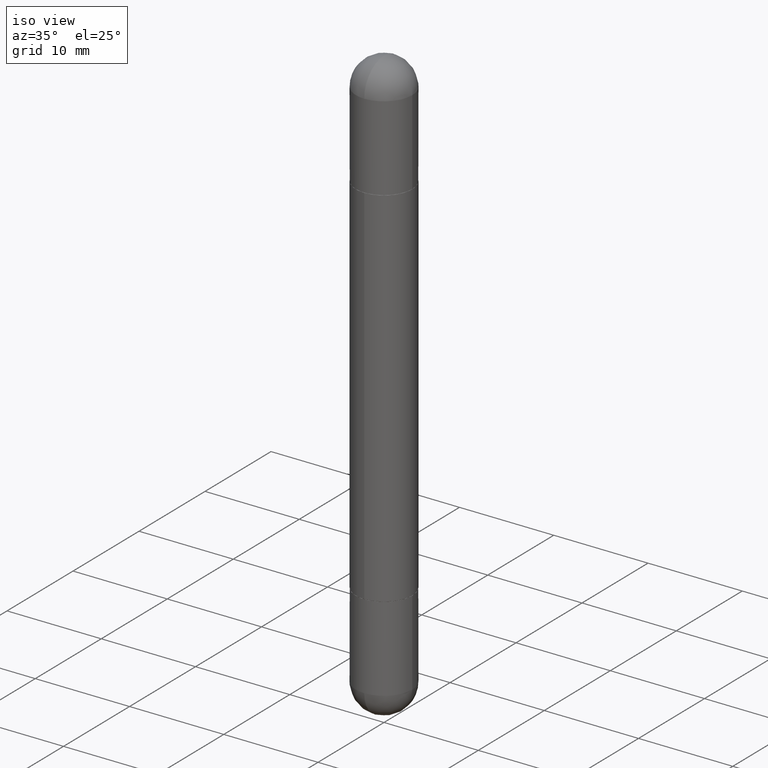
[diagram: clean part render]
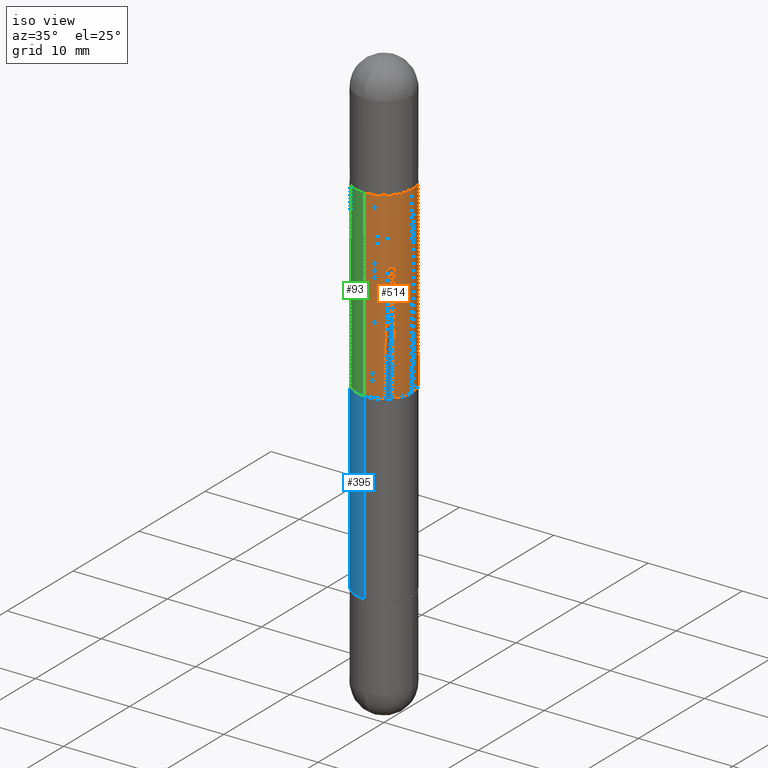
[diagram: same view with three faces highlighted in distinct colors, each labeled with its STEP entity id]
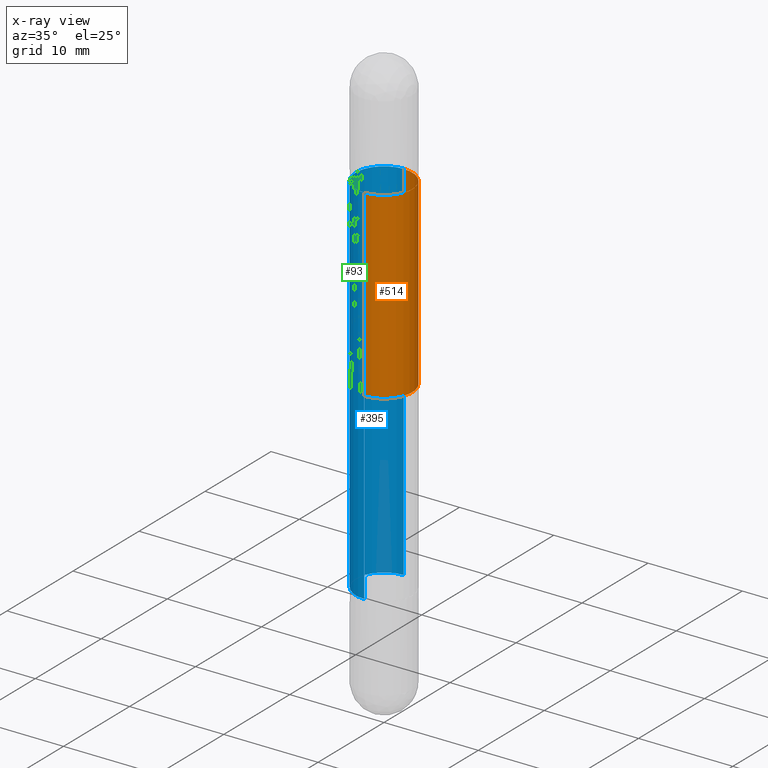
[diagram: x-ray of the same camera — body ghosted, the three highlighted faces saturated]
A machine part, iso view with three faces highlighted in distinct colors.
The next image is the same camera in x-ray (body ghosted, the three faces saturated) — at least one of them is partly hidden behind the body in this view.
Their STEP definitions:

[orange] entity #514 — the highlighted cylindrical surface (edge-blend (fillet) strip) has radius 2.9997 mm, axis along (-0, 0, -1).
#1 = CARTESIAN_POINT ( 'NONE',  ( -8.246878922347486570E-16, -0.1181000000000001077, -2.480300000000001059 ) ) ;
#27 = DIRECTION ( 'NONE',  ( -2.445001825099463957E-29, 3.492150082336742220E-15, -1.000000000000000000 ) ) ;
#57 = ORIENTED_EDGE ( 'NONE', *, *, #90, .F. ) ;
#58 = FACE_OUTER_BOUND ( 'NONE', #689, .T. ) ;
#74 = CARTESIAN_POINT ( 'NONE',  ( -8.246878922347090168E-16, -0.1181000000000044375, -1.240150000000000086 ) ) ;
#76 = VECTOR ( 'NONE', #27, 39.37007874015748143 ) ;
#90 = EDGE_CURVE ( 'NONE', #628, #216, #276, .T. ) ;
#99 = VECTOR ( 'NONE', #646, 39.37007874015748143 ) ;
#110 = DIRECTION ( 'NONE',  ( -6.982962677686265922E-15, -1.000000000000000000, -3.469747663417770297E-15 ) ) ;
#116 = DIRECTION ( 'NONE',  ( -6.982962677686265133E-15, -1.000000000000000000, -4.626330217890365392E-15 ) ) ;
#125 = ORIENTED_EDGE ( 'NONE', *, *, #420, .T. ) ;
#146 = LINE ( 'NONE', #1, #99 ) ;
#192 = CIRCLE ( 'NONE', #758, 0.1181000000000002326 ) ;
#210 = EDGE_CURVE ( 'NONE', #216, #422, #535, .T. ) ;
#216 = VERTEX_POINT ( 'NONE', #795 ) ;
#234 = DIRECTION ( 'NONE',  ( -0.000000000000000000, -0.000000000000000000, -1.000000000000000000 ) ) ;
#240 = ORIENTED_EDGE ( 'NONE', *, *, #210, .F. ) ;
#276 = LINE ( 'NONE', #393, #76 ) ;
#344 = CARTESIAN_POINT ( 'NONE',  ( 8.102248135368686180E-16, 0.1180999999999932243, -0.4734000000000000430 ) ) ;
#393 = CARTESIAN_POINT ( 'NONE',  ( 8.102248135368185253E-16, 0.1181000000000001077, -2.480299999999999727 ) ) ;
#420 = EDGE_CURVE ( 'NONE', #452, #422, #146, .T. ) ;
#422 = VERTEX_POINT ( 'NONE', #74 ) ;
#452 = VERTEX_POINT ( 'NONE', #724 ) ;
#514 = ADVANCED_FACE ( 'NONE', ( #58 ), #554, .T. ) ;
#535 = CIRCLE ( 'NONE', #635, 0.1181000000000001077 ) ;
#541 = EDGE_CURVE ( 'NONE', #452, #628, #192, .T. ) ;
#546 = AXIS2_PLACEMENT_3D ( 'NONE', #686, #690, #116 ) ;
#554 = CYLINDRICAL_SURFACE ( 'NONE', #546, 0.1181000000000001077 ) ;
#594 = ORIENTED_EDGE ( 'NONE', *, *, #541, .F. ) ;
#608 = DIRECTION ( 'NONE',  ( -1.000000000000000000, 0.000000000000000000, 0.000000000000000000 ) ) ;
#628 = VERTEX_POINT ( 'NONE', #344 ) ;
#635 = AXIS2_PLACEMENT_3D ( 'NONE', #788, #234, #608 ) ;
#646 = DIRECTION ( 'NONE',  ( -2.445001825099463957E-29, 3.492150082336742220E-15, -1.000000000000000000 ) ) ;
#683 = DIRECTION ( 'NONE',  ( 2.445001825099463957E-29, -3.492150082336741825E-15, 1.000000000000000000 ) ) ;
#686 = CARTESIAN_POINT ( 'NONE',  ( 0.000000000000000000, 0.000000000000000000, -2.480300000000000171 ) ) ;
#689 = EDGE_LOOP ( 'NONE', ( #57, #594, #125, #240 ) ) ;
#690 = DIRECTION ( 'NONE',  ( -2.445001825099463957E-29, 3.492150082336741825E-15, -1.000000000000000000 ) ) ;
#724 = CARTESIAN_POINT ( 'NONE',  ( -8.246878922347006351E-16, -0.1181000000000072547, -0.4734000000000008757 ) ) ;
#758 = AXIS2_PLACEMENT_3D ( 'NONE', #807, #683, #110 ) ;
#788 = CARTESIAN_POINT ( 'NONE',  ( 3.032169013397101030E-29, -4.330789924609910970E-15, -1.240150000000000086 ) ) ;
#795 = CARTESIAN_POINT ( 'NONE',  ( 8.102248135368673361E-16, 0.1180999999999957639, -1.240150000000000086 ) ) ;
#807 = CARTESIAN_POINT ( 'NONE',  ( 4.906874162792113662E-29, -7.008396000241606777E-15, -0.4734000000000004871 ) ) ;

[blue] entity #395 — the highlighted cylindrical surface (edge-blend (fillet) strip) has radius 2.9997 mm, axis along (-0, 0, -1).
#41 = CARTESIAN_POINT ( 'NONE',  ( -8.246878922347006351E-16, -0.1181000000000072547, -0.4734000000000008757 ) ) ;
#84 = ORIENTED_EDGE ( 'NONE', *, *, #275, .F. ) ;
#118 = EDGE_CURVE ( 'NONE', #128, #449, #364, .T. ) ;
#119 = CARTESIAN_POINT ( 'NONE',  ( 8.102248135368686180E-16, 0.1180999999999932243, -0.4734000000000000430 ) ) ;
#128 = VERTEX_POINT ( 'NONE', #41 ) ;
#129 = CARTESIAN_POINT ( 'NONE',  ( 8.102248135368185253E-16, 0.1181000000000001077, -2.480299999999999727 ) ) ;
#135 = CYLINDRICAL_SURFACE ( 'NONE', #464, 0.1181000000000001077 ) ;
#163 = EDGE_CURVE ( 'NONE', #472, #449, #361, .T. ) ;
#170 = ORIENTED_EDGE ( 'NONE', *, *, #737, .T. ) ;
#218 = VECTOR ( 'NONE', #292, 39.37007874015748143 ) ;
#238 = CARTESIAN_POINT ( 'NONE',  ( 4.906874162792113662E-29, -7.008396000241606777E-15, -2.006899999999999906 ) ) ;
#260 = VECTOR ( 'NONE', #318, 39.37007874015748143 ) ;
#275 = EDGE_CURVE ( 'NONE', #662, #128, #768, .T. ) ;
#279 = CARTESIAN_POINT ( 'NONE',  ( 8.102248135368491923E-16, 0.1180999999999932520, -2.006900000000000350 ) ) ;
#292 = DIRECTION ( 'NONE',  ( -2.445001825099463957E-29, 3.492150082336742220E-15, -1.000000000000000000 ) ) ;
#318 = DIRECTION ( 'NONE',  ( -2.445001825099463957E-29, 3.492150082336742220E-15, -1.000000000000000000 ) ) ;
#319 = ORIENTED_EDGE ( 'NONE', *, *, #118, .F. ) ;
#360 = DIRECTION ( 'NONE',  ( -6.982962677686265922E-15, -1.000000000000000000, 4.626330217890360659E-15 ) ) ;
#361 = CIRCLE ( 'NONE', #487, 0.1181000000000002326 ) ;
#364 = LINE ( 'NONE', #602, #218 ) ;
#372 = DIRECTION ( 'NONE',  ( 2.445001825099463957E-29, -3.492150082336741825E-15, 1.000000000000000000 ) ) ;
#390 = ORIENTED_EDGE ( 'NONE', *, *, #163, .T. ) ;
#391 = CARTESIAN_POINT ( 'NONE',  ( 0.000000000000000000, 0.000000000000000000, -2.480300000000000171 ) ) ;
#395 = ADVANCED_FACE ( 'NONE', ( #639 ), #135, .T. ) ;
#449 = VERTEX_POINT ( 'NONE', #467 ) ;
#464 = AXIS2_PLACEMENT_3D ( 'NONE', #391, #718, #651 ) ;
#467 = CARTESIAN_POINT ( 'NONE',  ( -8.246878922347006351E-16, -0.1181000000000072409, -2.006899999999999462 ) ) ;
#472 = VERTEX_POINT ( 'NONE', #279 ) ;
#478 = DIRECTION ( 'NONE',  ( -2.445001825099463957E-29, 3.492150082336741825E-15, 1.000000000000000000 ) ) ;
#487 = AXIS2_PLACEMENT_3D ( 'NONE', #238, #478, #360 ) ;
#565 = DIRECTION ( 'NONE',  ( -6.982962677686265922E-15, -1.000000000000000000, -3.469747663417770297E-15 ) ) ;
#602 = CARTESIAN_POINT ( 'NONE',  ( -8.246878922347486570E-16, -0.1181000000000001077, -2.480300000000001059 ) ) ;
#639 = FACE_OUTER_BOUND ( 'NONE', #766, .T. ) ;
#651 = DIRECTION ( 'NONE',  ( -6.982962677686265133E-15, -1.000000000000000000, -4.626330217890365392E-15 ) ) ;
#662 = VERTEX_POINT ( 'NONE', #119 ) ;
#718 = DIRECTION ( 'NONE',  ( -2.445001825099463957E-29, 3.492150082336741825E-15, -1.000000000000000000 ) ) ;
#737 = EDGE_CURVE ( 'NONE', #662, #472, #811, .T. ) ;
#755 = CARTESIAN_POINT ( 'NONE',  ( 4.906874162792113662E-29, -7.008396000241606777E-15, -0.4734000000000004871 ) ) ;
#766 = EDGE_LOOP ( 'NONE', ( #84, #170, #390, #319 ) ) ;
#768 = CIRCLE ( 'NONE', #810, 0.1181000000000002326 ) ;
#810 = AXIS2_PLACEMENT_3D ( 'NONE', #755, #372, #565 ) ;
#811 = LINE ( 'NONE', #129, #260 ) ;

[green] entity #93 — the highlighted cylindrical surface (edge-blend (fillet) strip) has radius 2.9997 mm, axis along (-0, 0, -1).
#1 = CARTESIAN_POINT ( 'NONE',  ( -8.246878922347486570E-16, -0.1181000000000001077, -2.480300000000001059 ) ) ;
#3 = CARTESIAN_POINT ( 'NONE',  ( 0.000000000000000000, 0.000000000000000000, -2.480300000000000171 ) ) ;
#27 = DIRECTION ( 'NONE',  ( -2.445001825099463957E-29, 3.492150082336742220E-15, -1.000000000000000000 ) ) ;
#45 = ORIENTED_EDGE ( 'NONE', *, *, #420, .F. ) ;
#74 = CARTESIAN_POINT ( 'NONE',  ( -8.246878922347090168E-16, -0.1181000000000044375, -1.240150000000000086 ) ) ;
#76 = VECTOR ( 'NONE', #27, 39.37007874015748143 ) ;
#86 = AXIS2_PLACEMENT_3D ( 'NONE', #3, #523, #136 ) ;
#90 = EDGE_CURVE ( 'NONE', #628, #216, #276, .T. ) ;
#93 = ADVANCED_FACE ( 'NONE', ( #147 ), #404, .T. ) ;
#99 = VECTOR ( 'NONE', #646, 39.37007874015748143 ) ;
#105 = EDGE_CURVE ( 'NONE', #628, #452, #650, .T. ) ;
#136 = DIRECTION ( 'NONE',  ( -6.982962677686265133E-15, -1.000000000000000000, -4.626330217890365392E-15 ) ) ;
#146 = LINE ( 'NONE', #1, #99 ) ;
#147 = FACE_OUTER_BOUND ( 'NONE', #156, .T. ) ;
#156 = EDGE_LOOP ( 'NONE', ( #611, #280, #347, #45 ) ) ;
#203 = CARTESIAN_POINT ( 'NONE',  ( 3.032169013397101030E-29, -4.330789924609910970E-15, -1.240150000000000086 ) ) ;
#204 = DIRECTION ( 'NONE',  ( -1.000000000000000000, 0.000000000000000000, 0.000000000000000000 ) ) ;
#216 = VERTEX_POINT ( 'NONE', #795 ) ;
#276 = LINE ( 'NONE', #393, #76 ) ;
#280 = ORIENTED_EDGE ( 'NONE', *, *, #90, .T. ) ;
#294 = AXIS2_PLACEMENT_3D ( 'NONE', #300, #553, #727 ) ;
#300 = CARTESIAN_POINT ( 'NONE',  ( 4.906874162792113662E-29, -7.008396000241606777E-15, -0.4734000000000004871 ) ) ;
#344 = CARTESIAN_POINT ( 'NONE',  ( 8.102248135368686180E-16, 0.1180999999999932243, -0.4734000000000000430 ) ) ;
#347 = ORIENTED_EDGE ( 'NONE', *, *, #705, .F. ) ;
#351 = AXIS2_PLACEMENT_3D ( 'NONE', #203, #566, #204 ) ;
#393 = CARTESIAN_POINT ( 'NONE',  ( 8.102248135368185253E-16, 0.1181000000000001077, -2.480299999999999727 ) ) ;
#404 = CYLINDRICAL_SURFACE ( 'NONE', #86, 0.1181000000000001077 ) ;
#420 = EDGE_CURVE ( 'NONE', #452, #422, #146, .T. ) ;
#422 = VERTEX_POINT ( 'NONE', #74 ) ;
#452 = VERTEX_POINT ( 'NONE', #724 ) ;
#523 = DIRECTION ( 'NONE',  ( -2.445001825099463957E-29, 3.492150082336741825E-15, -1.000000000000000000 ) ) ;
#553 = DIRECTION ( 'NONE',  ( 2.445001825099463957E-29, -3.492150082336741825E-15, 1.000000000000000000 ) ) ;
#566 = DIRECTION ( 'NONE',  ( -0.000000000000000000, -0.000000000000000000, -1.000000000000000000 ) ) ;
#611 = ORIENTED_EDGE ( 'NONE', *, *, #105, .F. ) ;
#628 = VERTEX_POINT ( 'NONE', #344 ) ;
#646 = DIRECTION ( 'NONE',  ( -2.445001825099463957E-29, 3.492150082336742220E-15, -1.000000000000000000 ) ) ;
#650 = CIRCLE ( 'NONE', #294, 0.1181000000000002326 ) ;
#674 = CIRCLE ( 'NONE', #351, 0.1181000000000001077 ) ;
#705 = EDGE_CURVE ( 'NONE', #422, #216, #674, .T. ) ;
#724 = CARTESIAN_POINT ( 'NONE',  ( -8.246878922347006351E-16, -0.1181000000000072547, -0.4734000000000008757 ) ) ;
#727 = DIRECTION ( 'NONE',  ( -6.982962677686265922E-15, -1.000000000000000000, -3.469747663417770297E-15 ) ) ;
#795 = CARTESIAN_POINT ( 'NONE',  ( 8.102248135368673361E-16, 0.1180999999999957639, -1.240150000000000086 ) ) ;